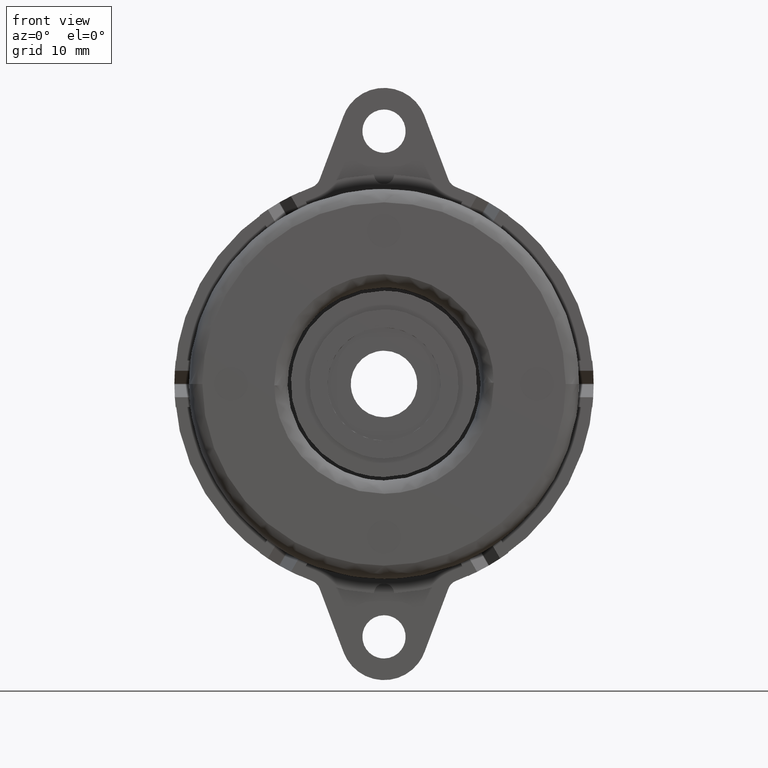
[diagram: clean part render]
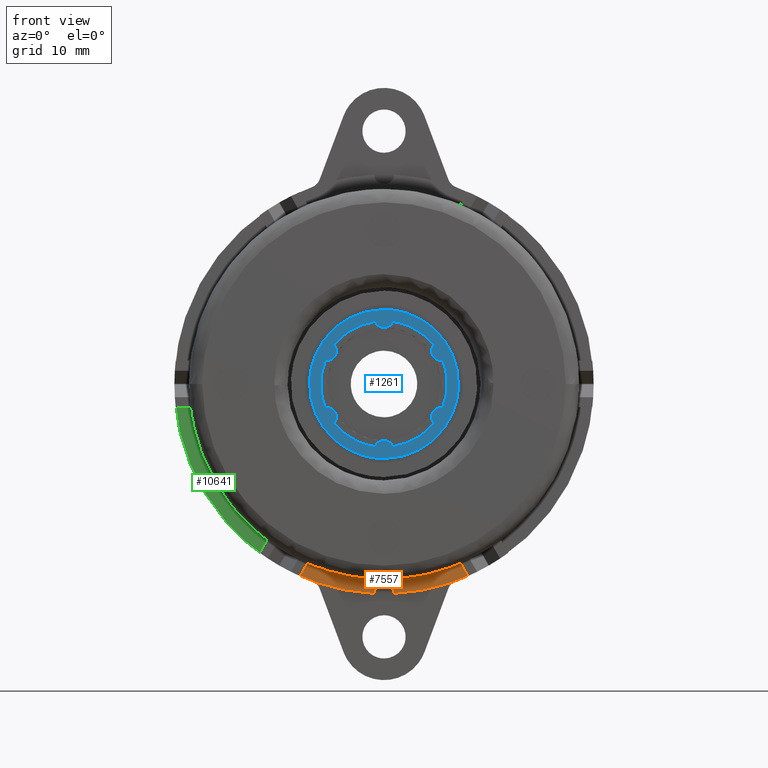
[diagram: same view with three faces highlighted in distinct colors, each labeled with its STEP entity id]
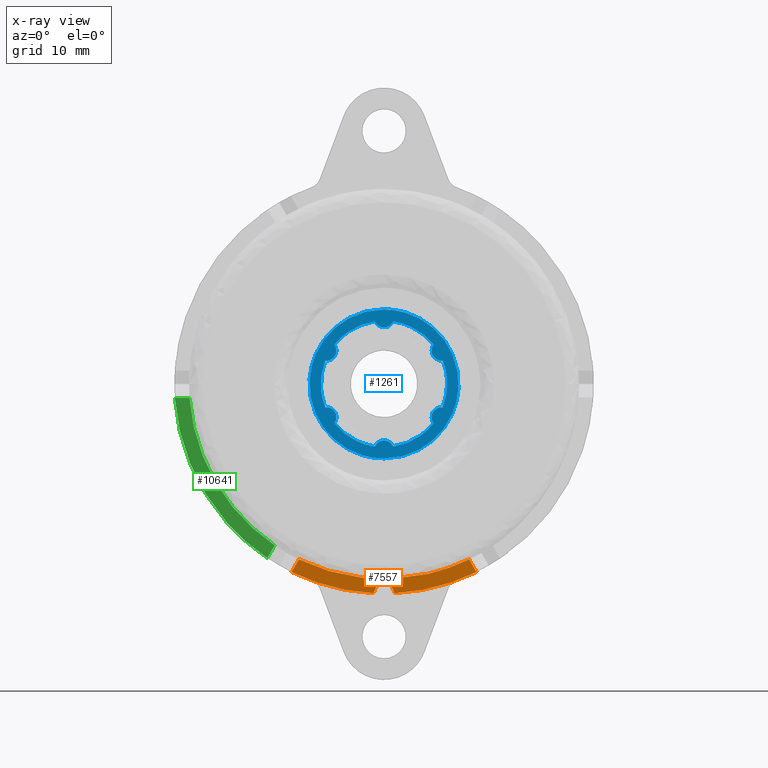
[diagram: x-ray of the same camera — body ghosted, the three highlighted faces saturated]
A machine part, front view with three faces highlighted in distinct colors.
The next image is the same camera in x-ray (body ghosted, the three faces saturated) — at least one of them is partly hidden behind the body in this view.
Their STEP definitions:

[orange] entity #7557 — the highlighted face is a freeform B-spline surface patch.
#4584=CARTESIAN_POINT('',(-1.499574769658360,-2.599999999999935,-31.464285714285690));
#4585=VERTEX_POINT('',#4584);
#4613=CARTESIAN_POINT('',(1.499574769658360,-2.599999999999935,-31.464285714285690));
#4614=VERTEX_POINT('',#4613);
#4620=CARTESIAN_POINT('',(1.499574769658360,-2.599999999999935,-31.464285714285690));
#4621=CARTESIAN_POINT('',(1.494721346220385,-2.599999999999939,-31.246750141905810));
#4622=CARTESIAN_POINT('',(1.402492444935919,-2.599999999999934,-30.874472178022518));
#4623=CARTESIAN_POINT('',(1.077306721654217,-2.599999999999927,-30.415005647611949));
#4624=CARTESIAN_POINT('',(0.696352003767002,-2.599999999999937,-30.145167614976621));
#4625=CARTESIAN_POINT('',(0.244731595022332,-2.599999999999939,-29.998429222119981));
#4626=CARTESIAN_POINT('',(-0.159669463013868,-2.599999999999914,-29.988644609372450));
#4627=CARTESIAN_POINT('',(-0.524461961482046,-2.599999999999961,-30.083372231143461));
#4628=CARTESIAN_POINT('',(-0.818348879486453,-2.599999999999931,-30.228686875891292));
#4629=CARTESIAN_POINT('',(-1.065113959247937,-2.599999999999926,-30.426934656549509));
#4630=CARTESIAN_POINT('',(-1.270356825196730,-2.599999999999962,-30.682611713872191));
#4631=CARTESIAN_POINT('',(-1.441385376834145,-2.599999999999891,-31.018459424166281));
#4632=CARTESIAN_POINT('',(-1.495666837734307,-2.599999999999972,-31.295124520902512));
#4633=CARTESIAN_POINT('',(-1.499574769658360,-2.599999999999935,-31.464285714285690));
#4634=B_SPLINE_CURVE_WITH_KNOTS('',3,(#4620,#4621,#4622,#4623,#4624,#4625,#4626,#4627,#4628,#4629,#4630,#4631,#4632,#4633),.UNSPECIFIED.,.F.,.U.,(4,1,1,1,1,1,1,1,1,1,1,4),(0.000000352736258,0.652617877729347,1.124009976354578,1.667919602518508,2.030513985304051,2.538073271837064,2.864403100312626,3.154470391885914,3.517063173000961,3.807148179050923,4.133490085881132,4.641066615799159),.UNSPECIFIED.);
#4635=EDGE_CURVE('',#4614,#4585,#4634,.T.);
#7492=CARTESIAN_POINT('',(-15.284548757091059,-2.599999999999915,-31.719280440947252));
#7493=CARTESIAN_POINT('',(-15.284548757091059,-2.599999999999915,-26.104291119845779));
#7494=CARTESIAN_POINT('',(15.284549504859051,-2.599999999999915,-31.719280440947252));
#7495=CARTESIAN_POINT('',(15.284549504859051,-2.599999999999915,-26.104291119845779));
#7496=B_SPLINE_SURFACE_WITH_KNOTS('',1,1,((#7492,#7494),(#7493,#7495)),.UNSPECIFIED.,.F.,.F.,.U.,(2,2),(2,2),(0.0,5.614989321101472),(0.0,30.569098261950099),.UNSPECIFIED.);
#7497=ORIENTED_EDGE('',*,*,#4635,.F.);
#7498=CARTESIAN_POINT('',(13.896307676503300,-2.599999999999935,-28.269110933313009));
#7499=VERTEX_POINT('',#7498);
#7500=CARTESIAN_POINT('',(1.499574769658361,-2.599999999999915,-31.464285714285719));
#7501=CARTESIAN_POINT('',(8.029495517440521,-2.599999999999914,-31.153072407549281));
#7502=CARTESIAN_POINT('',(13.896307676503289,-2.599999999999915,-28.269110933312980));
#7510=(BOUNDED_CURVE()B_SPLINE_CURVE(2,(#7500,#7501,#7502),.UNSPECIFIED.,.F.,.U.)CURVE()GEOMETRIC_REPRESENTATION_ITEM()QUASI_UNIFORM_CURVE()RATIONAL_B_SPLINE_CURVE((1.0,0.979136330898876,1.0))REPRESENTATION_ITEM(''));
#7511=EDGE_CURVE('',#4614,#7499,#7510,.T.);
#7512=ORIENTED_EDGE('',*,*,#7511,.T.);
#7513=CARTESIAN_POINT('',(12.793669727585661,-2.599999999999935,-26.359285983434098));
#7514=VERTEX_POINT('',#7513);
#7515=CARTESIAN_POINT('',(13.896307676503300,-2.599999999999935,-28.269110933313009));
#7516=CARTESIAN_POINT('',(12.793669727585661,-2.599999999999935,-26.359285983434098));
#7517=QUASI_UNIFORM_CURVE('',1,(#7515,#7516),.UNSPECIFIED.,.F.,.U.);
#7518=EDGE_CURVE('',#7499,#7514,#7517,.T.);
#7519=ORIENTED_EDGE('',*,*,#7518,.T.);
#7520=CARTESIAN_POINT('',(-12.793669727585661,-2.599999999999935,-26.359285983434098));
#7521=VERTEX_POINT('',#7520);
#7522=CARTESIAN_POINT('',(-12.793669727585661,-2.599999999999935,-26.359285983434098));
#7523=CARTESIAN_POINT('',(-1.568190E-015,-2.599999999999935,-32.568784025424073));
#7524=CARTESIAN_POINT('',(12.793669727585661,-2.599999999999935,-26.359285983434098));
#7532=(BOUNDED_CURVE()B_SPLINE_CURVE(2,(#7522,#7523,#7524),.UNSPECIFIED.,.F.,.U.)CURVE()GEOMETRIC_REPRESENTATION_ITEM()QUASI_UNIFORM_CURVE()RATIONAL_B_SPLINE_CURVE((1.0,0.899634363952268,1.0))REPRESENTATION_ITEM(''));
#7533=EDGE_CURVE('',#7521,#7514,#7532,.T.);
#7534=ORIENTED_EDGE('',*,*,#7533,.F.);
#7535=CARTESIAN_POINT('',(-13.896307674191339,-2.599999999999935,-28.269110929308550));
#7536=VERTEX_POINT('',#7535);
#7537=CARTESIAN_POINT('',(-13.896307674191339,-2.599999999999935,-28.269110929308550));
#7538=CARTESIAN_POINT('',(-12.793669727585661,-2.599999999999935,-26.359285983434098));
#7539=QUASI_UNIFORM_CURVE('',1,(#7537,#7538),.UNSPECIFIED.,.F.,.U.);
#7540=EDGE_CURVE('',#7536,#7521,#7539,.T.);
#7541=ORIENTED_EDGE('',*,*,#7540,.F.);
#7542=CARTESIAN_POINT('',(-13.896307674191339,-2.599999999999935,-28.269110929308550));
#7543=CARTESIAN_POINT('',(-8.029495517279946,-2.599999999999915,-31.153072407556934));
#7544=CARTESIAN_POINT('',(-1.499574769658363,-2.599999999999915,-31.464285714285719));
#7552=(BOUNDED_CURVE()B_SPLINE_CURVE(2,(#7542,#7543,#7544),.UNSPECIFIED.,.F.,.U.)CURVE()GEOMETRIC_REPRESENTATION_ITEM()QUASI_UNIFORM_CURVE()RATIONAL_B_SPLINE_CURVE((1.0,0.979136330899871,1.0))REPRESENTATION_ITEM(''));
#7553=EDGE_CURVE('',#7536,#4585,#7552,.T.);
#7554=ORIENTED_EDGE('',*,*,#7553,.T.);
#7555=EDGE_LOOP('',(#7497,#7512,#7519,#7534,#7541,#7554));
#7556=FACE_OUTER_BOUND('',#7555,.T.);
#7557=ADVANCED_FACE('',(#7556),#7496,.F.);

[blue] entity #1261 — the highlighted face is a freeform B-spline surface patch.
#681=CARTESIAN_POINT('',(-8.828024976885210,-12.900000000000119,3.509412345035965));
#682=VERTEX_POINT('',#681);
#683=CARTESIAN_POINT('',(-8.828024976885221,-12.900000000000119,-3.509412345035960));
#684=VERTEX_POINT('',#683);
#685=CARTESIAN_POINT('',(-8.828024976885210,-12.900000000000119,3.509412345035971));
#686=CARTESIAN_POINT('',(-10.223124678091114,-12.900000000000119,9.974660E-015));
#687=CARTESIAN_POINT('',(-8.828024976885217,-12.900000000000119,-3.509412345035954));
#695=(BOUNDED_CURVE()B_SPLINE_CURVE(2,(#685,#686,#687),.UNSPECIFIED.,.F.,.U.)CURVE()GEOMETRIC_REPRESENTATION_ITEM()QUASI_UNIFORM_CURVE()RATIONAL_B_SPLINE_CURVE((1.0,0.929265787040549,1.0))REPRESENTATION_ITEM(''));
#696=EDGE_CURVE('',#682,#684,#695,.T.);
#731=CARTESIAN_POINT('',(-7.453246806070279,-12.900000000000119,-5.890595220162660));
#732=VERTEX_POINT('',#731);
#733=CARTESIAN_POINT('',(-7.453246806070279,-12.900000000000119,-5.890595220162660));
#734=CARTESIAN_POINT('',(-7.334751208673375,-12.900000000000130,-5.730366475995407));
#735=CARTESIAN_POINT('',(-7.190640866334944,-12.900000000000110,-5.420488428964204));
#736=CARTESIAN_POINT('',(-7.141623558041214,-12.900000000000130,-4.938472209902607));
#737=CARTESIAN_POINT('',(-7.208646745203053,-12.900000000000160,-4.569245252803812));
#738=CARTESIAN_POINT('',(-7.358956253459696,-12.899999999999990,-4.228012392884105));
#739=CARTESIAN_POINT('',(-7.544885856963869,-12.900000000000380,-3.979015097438948));
#740=CARTESIAN_POINT('',(-7.806286185663397,-12.899999999999730,-3.753390619652464));
#741=CARTESIAN_POINT('',(-8.062139678032004,-12.900000000000331,-3.612342271785192));
#742=CARTESIAN_POINT('',(-8.418589769816823,-12.900000000000000,-3.503866097028800));
#743=CARTESIAN_POINT('',(-8.666023832327332,-12.900000000000160,-3.491077630030105));
#744=CARTESIAN_POINT('',(-8.828024976885221,-12.900000000000119,-3.509412345035960));
#745=B_SPLINE_CURVE_WITH_KNOTS('',3,(#733,#734,#735,#736,#737,#738,#739,#740,#741,#742,#743,#744),.UNSPECIFIED.,.F.,.U.,(4,1,1,1,1,1,1,1,1,4),(0.000000350794454,0.597747664832009,1.005339326435796,1.440103943858007,1.711826834172842,2.119335598428603,2.363879912299653,2.744286788135484,2.988841338147535,3.477898871698307),.UNSPECIFIED.);
#746=EDGE_CURVE('',#732,#684,#745,.T.);
#772=CARTESIAN_POINT('',(-1.374772708486750,-12.900000000000119,-9.400000000000000));
#773=VERTEX_POINT('',#772);
#774=CARTESIAN_POINT('',(-7.453246806070276,-12.900000000000119,-5.890595220162664));
#775=CARTESIAN_POINT('',(-5.111557032091210,-12.900000000000118,-8.853486265362497));
#776=CARTESIAN_POINT('',(-1.374772708486749,-12.900000000000119,-9.400000000000000));
#784=(BOUNDED_CURVE()B_SPLINE_CURVE(2,(#774,#775,#776),.UNSPECIFIED.,.F.,.U.)CURVE()GEOMETRIC_REPRESENTATION_ITEM()QUASI_UNIFORM_CURVE()RATIONAL_B_SPLINE_CURVE((1.0,0.929265981943490,1.0))REPRESENTATION_ITEM(''));
#785=EDGE_CURVE('',#732,#773,#784,.T.);
#816=CARTESIAN_POINT('',(1.374772708486750,-12.900000000000119,-9.400000000000000));
#817=VERTEX_POINT('',#816);
#818=CARTESIAN_POINT('',(1.374772708486750,-12.900000000000119,-9.400000000000000));
#819=CARTESIAN_POINT('',(1.288076984935448,-12.900000000000080,-9.200603487173074));
#820=CARTESIAN_POINT('',(1.085907918606523,-12.900000000000130,-8.923554872780125));
#821=CARTESIAN_POINT('',(0.673799759851501,-12.900000000000130,-8.637484103814790));
#822=CARTESIAN_POINT('',(0.282579048681908,-12.900000000000130,-8.505197763449694));
#823=CARTESIAN_POINT('',(-0.091506877263404,-12.900000000000110,-8.491731865045500));
#824=CARTESIAN_POINT('',(-0.458595312169556,-12.900000000000119,-8.555454815832139));
#825=CARTESIAN_POINT('',(-0.802686221284904,-12.900000000000100,-8.707727244833944));
#826=CARTESIAN_POINT('',(-1.149909530039016,-12.900000000000150,-9.004113933653397));
#827=CARTESIAN_POINT('',(-1.309652217351337,-12.900000000000110,-9.250544187489810));
#828=CARTESIAN_POINT('',(-1.374772708486750,-12.900000000000119,-9.400000000000000));
#829=B_SPLINE_CURVE_WITH_KNOTS('',3,(#818,#819,#820,#821,#822,#823,#824,#825,#826,#827,#828),.UNSPECIFIED.,.F.,.U.,(4,1,1,1,1,1,1,1,4),(0.000000351120822,0.652089514902897,1.005335601238262,1.494436285215171,1.874786881019338,2.119327744915226,2.608414562711185,2.988830260906426,3.477885982530661),.UNSPECIFIED.);
#830=EDGE_CURVE('',#817,#773,#829,.T.);
#856=CARTESIAN_POINT('',(7.453241799453159,-12.900000000000119,-5.890592692467580));
#857=VERTEX_POINT('',#856);
#858=CARTESIAN_POINT('',(1.374772708486750,-12.900000000000119,-9.400000000000000));
#859=CARTESIAN_POINT('',(5.111554234003248,-12.900000000000119,-8.853484655608087));
#860=CARTESIAN_POINT('',(7.453241799453159,-12.900000000000119,-5.890592692467580));
#868=(BOUNDED_CURVE()B_SPLINE_CURVE(2,(#858,#859,#860),.UNSPECIFIED.,.F.,.U.)CURVE()GEOMETRIC_REPRESENTATION_ITEM()QUASI_UNIFORM_CURVE()RATIONAL_B_SPLINE_CURVE((1.0,0.929266003744745,1.0))REPRESENTATION_ITEM(''));
#869=EDGE_CURVE('',#817,#857,#868,.T.);
#903=CARTESIAN_POINT('',(8.828025444571550,-12.900000000000119,-3.509411168557675));
#904=VERTEX_POINT('',#903);
#905=CARTESIAN_POINT('',(8.828025444571550,-12.900000000000119,-3.509411168557675));
#906=CARTESIAN_POINT('',(8.666027093006649,-12.900000000000141,-3.491075190703748));
#907=CARTESIAN_POINT('',(8.381906837348257,-12.900000000000110,-3.505733047910698));
#908=CARTESIAN_POINT('',(7.985234265557901,-12.900000000000110,-3.642335144090271));
#909=CARTESIAN_POINT('',(7.703327342563627,-12.900000000000160,-3.829196565342920));
#910=CARTESIAN_POINT('',(7.463421648101511,-12.900000000000080,-4.077562864756065));
#911=CARTESIAN_POINT('',(7.264564358312805,-12.900000000000050,-4.394707072942082));
#912=CARTESIAN_POINT('',(7.164194202683124,-12.900000000000331,-4.757338687319205));
#913=CARTESIAN_POINT('',(7.155259208015818,-12.900000000000000,-5.111650983367795));
#914=CARTESIAN_POINT('',(7.216457214717354,-12.900000000000240,-5.480142330526257));
#915=CARTESIAN_POINT('',(7.345560987041942,-12.900000000000061,-5.744913909485828));
#916=CARTESIAN_POINT('',(7.453241799453159,-12.900000000000119,-5.890592692467580));
#917=B_SPLINE_CURVE_WITH_KNOTS('',3,(#905,#906,#907,#908,#909,#910,#911,#912,#913,#914,#915,#916),.UNSPECIFIED.,.F.,.U.,(4,1,1,1,1,1,1,1,1,4),(0.000000350991060,0.489069612870953,0.842305136790492,1.249897494186427,1.494445594808009,1.874798560690734,2.363885877465920,2.608430811815381,2.934506413609158,3.477907648051641),.UNSPECIFIED.);
#918=EDGE_CURVE('',#904,#857,#917,.T.);
#942=CARTESIAN_POINT('',(8.828025641149331,-12.900000000000119,3.509413545404325));
#943=VERTEX_POINT('',#942);
#944=CARTESIAN_POINT('',(8.828025444571550,-12.900000000000119,-3.509411168557675));
#945=CARTESIAN_POINT('',(10.223125086237960,-12.900000000000116,0.000001345269523));
#946=CARTESIAN_POINT('',(8.828025641149331,-12.900000000000119,3.509413545404325));
#954=(BOUNDED_CURVE()B_SPLINE_CURVE(2,(#944,#945,#946),.UNSPECIFIED.,.F.,.U.)CURVE()GEOMETRIC_REPRESENTATION_ITEM()QUASI_UNIFORM_CURVE()RATIONAL_B_SPLINE_CURVE((1.0,0.929265794739009,1.0))REPRESENTATION_ITEM(''));
#955=EDGE_CURVE('',#904,#943,#954,.T.);
#989=CARTESIAN_POINT('',(7.453247217311509,-12.900000000000119,5.890594699827710));
#990=VERTEX_POINT('',#989);
#991=CARTESIAN_POINT('',(7.453247217311509,-12.900000000000119,5.890594699827710));
#992=CARTESIAN_POINT('',(7.356382975185635,-12.900000000000141,5.759465173701560));
#993=CARTESIAN_POINT('',(7.201873446814544,-12.900000000000070,5.457049763509615));
#994=CARTESIAN_POINT('',(7.141331168614491,-12.900000000000171,5.020045786710369));
#995=CARTESIAN_POINT('',(7.196234911011541,-12.900000000000100,4.614100019014342));
#996=CARTESIAN_POINT('',(7.344734135028395,-12.900000000000031,4.230501899585152));
#997=CARTESIAN_POINT('',(7.609792362742510,-12.900000000000171,3.901110571049135));
#998=CARTESIAN_POINT('',(7.922959221904228,-12.900000000000150,3.681227069147864));
#999=CARTESIAN_POINT('',(8.307906828084416,-12.900000000000080,3.516500488261396));
#1000=CARTESIAN_POINT('',(8.621000423979483,-12.900000000000119,3.485824870756509));
#1001=CARTESIAN_POINT('',(8.828025641149331,-12.900000000000119,3.509413545404325));
#1002=B_SPLINE_CURVE_WITH_KNOTS('',3,(#991,#992,#993,#994,#995,#996,#997,#998,#999,#1000,#1001),.UNSPECIFIED.,.F.,.U.,(4,1,1,1,1,1,1,1,4),(0.000000351326058,0.489069767383297,1.005342180009403,1.304238061687598,1.711831691163612,2.228013442684670,2.554087602511753,2.852976641431055,3.477908739433380),.UNSPECIFIED.);
#1003=EDGE_CURVE('',#990,#943,#1002,.T.);
#1027=CARTESIAN_POINT('',(1.374772708486752,-12.900000000000119,9.400000000000000));
#1028=VERTEX_POINT('',#1027);
#1029=CARTESIAN_POINT('',(7.453247217311510,-12.900000000000119,5.890594699827703));
#1030=CARTESIAN_POINT('',(5.111557412066436,-12.900000000000123,8.853486209790200));
#1031=CARTESIAN_POINT('',(1.374772708486754,-12.900000000000119,9.399999999999999));
#1039=(BOUNDED_CURVE()B_SPLINE_CURVE(2,(#1029,#1030,#1031),.UNSPECIFIED.,.F.,.U.)CURVE()GEOMETRIC_REPRESENTATION_ITEM()QUASI_UNIFORM_CURVE()RATIONAL_B_SPLINE_CURVE((1.0,0.929265969048597,1.0))REPRESENTATION_ITEM(''));
#1040=EDGE_CURVE('',#990,#1028,#1039,.T.);
#1071=CARTESIAN_POINT('',(-1.374772708486750,-12.900000000000119,9.400000000000000));
#1072=VERTEX_POINT('',#1071);
#1073=CARTESIAN_POINT('',(-1.374772708486750,-12.900000000000119,9.400000000000000));
#1074=CARTESIAN_POINT('',(-1.309641045385240,-12.900000000000110,9.250549325104560));
#1075=CARTESIAN_POINT('',(-1.125006260695131,-12.900000000000141,8.965537789335265));
#1076=CARTESIAN_POINT('',(-0.740526645190710,-12.900000000000119,8.666366273281639));
#1077=CARTESIAN_POINT('',(-0.361376056441422,-12.900000000000150,8.530578319997293));
#1078=CARTESIAN_POINT('',(0.008632008454321,-12.899999999999959,8.486827432472811));
#1079=CARTESIAN_POINT('',(0.317927955489955,-12.900000000000450,8.520565897939544));
#1080=CARTESIAN_POINT('',(0.652616391613399,-12.899999999999670,8.637140446712502));
#1081=CARTESIAN_POINT('',(0.902687142524370,-12.900000000000309,8.788197248607068));
#1082=CARTESIAN_POINT('',(1.174862092771816,-12.899999999999951,9.042642729257414));
#1083=CARTESIAN_POINT('',(1.309648655640740,-12.900000000000230,9.250538208187029));
#1084=CARTESIAN_POINT('',(1.374772708486752,-12.900000000000119,9.400000000000000));
#1085=B_SPLINE_CURVE_WITH_KNOTS('',3,(#1073,#1074,#1075,#1076,#1077,#1078,#1079,#1080,#1081,#1082,#1083,#1084),.UNSPECIFIED.,.F.,.U.,(4,1,1,1,1,1,1,1,1,4),(0.000000351120478,0.489066566988437,1.005335601237908,1.440098607287733,1.684631356363751,2.119327744915171,2.363871151910026,2.744276617491747,2.988830260906422,3.477885982530663),.UNSPECIFIED.);
#1086=EDGE_CURVE('',#1072,#1028,#1085,.T.);
#1112=CARTESIAN_POINT('',(-7.453246806070260,-12.900000000000119,5.890595220162680));
#1113=VERTEX_POINT('',#1112);
#1114=CARTESIAN_POINT('',(-1.374772708486752,-12.900000000000119,9.399999999999999));
#1115=CARTESIAN_POINT('',(-5.111557032091200,-12.900000000000121,8.853486265362497));
#1116=CARTESIAN_POINT('',(-7.453246806070264,-12.900000000000119,5.890595220162679));
#1124=(BOUNDED_CURVE()B_SPLINE_CURVE(2,(#1114,#1115,#1116),.UNSPECIFIED.,.F.,.U.)CURVE()GEOMETRIC_REPRESENTATION_ITEM()QUASI_UNIFORM_CURVE()RATIONAL_B_SPLINE_CURVE((1.0,0.929265981943490,1.0))REPRESENTATION_ITEM(''));
#1125=EDGE_CURVE('',#1072,#1113,#1124,.T.);
#1156=CARTESIAN_POINT('',(-8.828024976885210,-12.900000000000119,3.509412345035965));
#1157=CARTESIAN_POINT('',(-8.611995425487953,-12.900000000000100,3.484795405009875));
#1158=CARTESIAN_POINT('',(-8.270973057477816,-12.900000000000160,3.521349547398530));
#1159=CARTESIAN_POINT('',(-7.817187389542911,-12.900000000000061,3.735223174410560));
#1160=CARTESIAN_POINT('',(-7.465579420286892,-12.900000000000240,4.044190452603229));
#1161=CARTESIAN_POINT('',(-7.242706862035147,-12.899999999999951,4.446940889511012));
#1162=CARTESIAN_POINT('',(-7.153137785681131,-12.900000000000389,4.856365090262030));
#1163=CARTESIAN_POINT('',(-7.159446276111981,-12.899999999999981,5.175855501909057));
#1164=CARTESIAN_POINT('',(-7.243724824952158,-12.900000000000210,5.538786331846010));
#1165=CARTESIAN_POINT('',(-7.356368193000530,-12.900000000000100,5.759465700943507));
#1166=CARTESIAN_POINT('',(-7.453246806070260,-12.900000000000119,5.890595220162680));
#1167=B_SPLINE_CURVE_WITH_KNOTS('',3,(#1156,#1157,#1158,#1159,#1160,#1161,#1162,#1163,#1164,#1165,#1166),.UNSPECIFIED.,.F.,.U.,(4,1,1,1,1,1,1,1,4),(0.000000350446349,0.652091930594695,1.005339326418818,1.494441823998559,2.037796233159266,2.363879913053080,2.744286788239409,2.988841338301278,3.477898871698318),.UNSPECIFIED.);
#1168=EDGE_CURVE('',#682,#1113,#1167,.T.);
#1176=CARTESIAN_POINT('',(-12.318604337862880,-12.900000000000119,12.318879956584460));
#1177=CARTESIAN_POINT('',(12.318603937319670,-12.900000000000119,12.318879956584460));
#1178=CARTESIAN_POINT('',(-12.318604337862880,-12.900000000000119,-12.318880557399270));
#1179=CARTESIAN_POINT('',(12.318603937319670,-12.900000000000119,-12.318880557399270));
#1180=B_SPLINE_SURFACE_WITH_KNOTS('',1,1,((#1176,#1178),(#1177,#1179)),.UNSPECIFIED.,.F.,.F.,.U.,(2,2),(2,2),(0.0,24.637208275182552),(0.0,24.637760513983729),.UNSPECIFIED.);
#1181=CARTESIAN_POINT('',(0.0,-12.900000000000119,11.199999999999999));
#1182=VERTEX_POINT('',#1181);
#1183=CARTESIAN_POINT('',(-11.179109742319261,-12.900000000000119,0.683743642882775));
#1184=VERTEX_POINT('',#1183);
#1185=CARTESIAN_POINT('',(0.0,-12.900000000000119,11.199999999999999));
#1186=CARTESIAN_POINT('',(-10.535907949256558,-12.900000000000119,11.200000000000001));
#1187=CARTESIAN_POINT('',(-11.179109742319259,-12.900000000000119,0.683743642882774));
#1195=(BOUNDED_CURVE()B_SPLINE_CURVE(2,(#1185,#1186,#1187),.UNSPECIFIED.,.F.,.U.)B_SPLINE_CURVE_WITH_KNOTS((3,3),(0.0,0.239332962240543),.UNSPECIFIED.)CURVE()GEOMETRIC_REPRESENTATION_ITEM()RATIONAL_B_SPLINE_CURVE((1.0,0.719603993284836,0.976072041670146))REPRESENTATION_ITEM(''));
#1196=EDGE_CURVE('',#1182,#1184,#1195,.T.);
#1197=ORIENTED_EDGE('',*,*,#1196,.T.);
#1198=CARTESIAN_POINT('',(0.0,-12.900000000000119,-11.199999999999999));
#1199=VERTEX_POINT('',#1198);
#1200=CARTESIAN_POINT('',(-11.179109742319259,-12.900000000000119,0.683743642882774));
#1201=CARTESIAN_POINT('',(-11.200000000000003,-12.900000000000125,0.342190948990513));
#1202=CARTESIAN_POINT('',(-11.199999999999999,-12.900000000000119,0.0));
#1203=CARTESIAN_POINT('',(-11.199999999999999,-12.900000000000119,-11.199999999999999));
#1204=CARTESIAN_POINT('',(0.0,-12.900000000000119,-11.199999999999999));
#1212=(BOUNDED_CURVE()B_SPLINE_CURVE(2,(#1200,#1201,#1202,#1203,#1204),.UNSPECIFIED.,.F.,.U.)B_SPLINE_CURVE_WITH_KNOTS((3,2,3),(0.239332962240543,0.250000000000000,0.500000000000000),.UNSPECIFIED.)CURVE()GEOMETRIC_REPRESENTATION_ITEM()RATIONAL_B_SPLINE_CURVE((0.976072041670146,0.987502787901711,1.0,0.707106781186547,1.0))REPRESENTATION_ITEM(''));
#1213=EDGE_CURVE('',#1184,#1199,#1212,.T.);
#1214=ORIENTED_EDGE('',*,*,#1213,.T.);
#1215=CARTESIAN_POINT('',(11.179109742319261,-12.900000000000119,-0.683743642882773));
#1216=VERTEX_POINT('',#1215);
#1217=CARTESIAN_POINT('',(0.0,-12.900000000000119,-11.199999999999999));
#1218=CARTESIAN_POINT('',(10.535907949256556,-12.900000000000119,-11.200000000000001));
#1219=CARTESIAN_POINT('',(11.179109742319262,-12.900000000000121,-0.683743642882776));
#1227=(BOUNDED_CURVE()B_SPLINE_CURVE(2,(#1217,#1218,#1219),.UNSPECIFIED.,.F.,.U.)B_SPLINE_CURVE_WITH_KNOTS((3,3),(0.500000000000000,0.739332962240542),.UNSPECIFIED.)CURVE()GEOMETRIC_REPRESENTATION_ITEM()RATIONAL_B_SPLINE_CURVE((1.0,0.719603993284836,0.976072041670146))REPRESENTATION_ITEM(''));
#1228=EDGE_CURVE('',#1199,#1216,#1227,.T.);
#1229=ORIENTED_EDGE('',*,*,#1228,.T.);
#1230=CARTESIAN_POINT('',(11.179109742319262,-12.900000000000121,-0.683743642882776));
#1231=CARTESIAN_POINT('',(11.200000000000003,-12.900000000000125,-0.342190948990514));
#1232=CARTESIAN_POINT('',(11.199999999999999,-12.900000000000119,0.0));
#1233=CARTESIAN_POINT('',(11.199999999999999,-12.900000000000119,11.199999999999999));
#1234=CARTESIAN_POINT('',(0.0,-12.900000000000119,11.199999999999999));
#1242=(BOUNDED_CURVE()B_SPLINE_CURVE(2,(#1230,#1231,#1232,#1233,#1234),.UNSPECIFIED.,.F.,.U.)B_SPLINE_CURVE_WITH_KNOTS((3,2,3),(0.739332962240542,0.750000000000000,1.0),.UNSPECIFIED.)CURVE()GEOMETRIC_REPRESENTATION_ITEM()RATIONAL_B_SPLINE_CURVE((0.976072041670146,0.987502787901711,1.0,0.707106781186547,1.0))REPRESENTATION_ITEM(''));
#1243=EDGE_CURVE('',#1216,#1182,#1242,.T.);
#1244=ORIENTED_EDGE('',*,*,#1243,.T.);
#1245=EDGE_LOOP('',(#1197,#1214,#1229,#1244));
#1246=FACE_OUTER_BOUND('',#1245,.T.);
#1247=ORIENTED_EDGE('',*,*,#918,.T.);
#1248=ORIENTED_EDGE('',*,*,#869,.F.);
#1249=ORIENTED_EDGE('',*,*,#830,.T.);
#1250=ORIENTED_EDGE('',*,*,#785,.F.);
#1251=ORIENTED_EDGE('',*,*,#746,.T.);
#1252=ORIENTED_EDGE('',*,*,#696,.F.);
#1253=ORIENTED_EDGE('',*,*,#1168,.T.);
#1254=ORIENTED_EDGE('',*,*,#1125,.F.);
#1255=ORIENTED_EDGE('',*,*,#1086,.T.);
#1256=ORIENTED_EDGE('',*,*,#1040,.F.);
#1257=ORIENTED_EDGE('',*,*,#1003,.T.);
#1258=ORIENTED_EDGE('',*,*,#955,.F.);
#1259=EDGE_LOOP('',(#1247,#1248,#1249,#1250,#1251,#1252,#1253,#1254,#1255,#1256,#1257,#1258));
#1260=FACE_BOUND('',#1259,.T.);
#1261=ADVANCED_FACE('',(#1246,#1260),#1180,.F.);

[green] entity #10641 — the highlighted face is a freeform B-spline surface patch.
#6344=CARTESIAN_POINT('',(-31.429922044277198,-2.599999999999935,-2.099999999999920));
#6345=VERTEX_POINT('',#6344);
#6368=CARTESIAN_POINT('',(-17.533614372397849,-2.599999999999935,-26.169110933313050));
#6369=VERTEX_POINT('',#6368);
#6375=CARTESIAN_POINT('',(-31.429922044277198,-2.599999999999935,-2.099999999999920));
#6376=CARTESIAN_POINT('',(-30.397620531036218,-2.599999999999916,-17.550074396516141));
#6377=CARTESIAN_POINT('',(-17.533614372397839,-2.599999999999915,-26.169110933313039));
#6385=(BOUNDED_CURVE()B_SPLINE_CURVE(2,(#6375,#6376,#6377),.UNSPECIFIED.,.F.,.U.)CURVE()GEOMETRIC_REPRESENTATION_ITEM()QUASI_UNIFORM_CURVE()RATIONAL_B_SPLINE_CURVE((1.0,0.897432093123206,1.0))REPRESENTATION_ITEM(''));
#6386=EDGE_CURVE('',#6345,#6369,#6385,.T.);
#8655=CARTESIAN_POINT('',(-29.224646151065851,-2.599999999999935,-2.099999999999920));
#8656=VERTEX_POINT('',#8655);
#8657=CARTESIAN_POINT('',(-31.429922044277198,-2.599999999999935,-2.099999999999920));
#8658=CARTESIAN_POINT('',(-29.224646151065851,-2.599999999999935,-2.099999999999920));
#8659=QUASI_UNIFORM_CURVE('',1,(#8657,#8658),.UNSPECIFIED.,.F.,.U.);
#8660=EDGE_CURVE('',#6345,#8656,#8659,.T.);
#8823=CARTESIAN_POINT('',(-16.430976423480150,-2.599999999999935,-24.259285983434150));
#8824=VERTEX_POINT('',#8823);
#8830=CARTESIAN_POINT('',(-17.533614372397849,-2.599999999999935,-26.169110933313050));
#8831=CARTESIAN_POINT('',(-16.430976423480150,-2.599999999999935,-24.259285983434150));
#8832=QUASI_UNIFORM_CURVE('',1,(#8830,#8831),.UNSPECIFIED.,.F.,.U.);
#8833=EDGE_CURVE('',#6369,#8824,#8832,.T.);
#10603=CARTESIAN_POINT('',(-32.179119348965152,-2.599999999999915,-27.371362977781430));
#10604=CARTESIAN_POINT('',(-32.179119348965152,-2.599999999999915,-0.897747309947673));
#10605=CARTESIAN_POINT('',(-15.681778716489131,-2.599999999999915,-27.371362977781430));
#10606=CARTESIAN_POINT('',(-15.681778716489131,-2.599999999999915,-0.897747309947673));
#10607=B_SPLINE_SURFACE_WITH_KNOTS('',1,1,((#10603,#10605),(#10604,#10606)),.UNSPECIFIED.,.F.,.F.,.U.,(2,2),(2,2),(0.0,26.473615667833759),(0.0,16.497340632476021),.UNSPECIFIED.);
#10608=ORIENTED_EDGE('',*,*,#8660,.F.);
#10609=ORIENTED_EDGE('',*,*,#6386,.T.);
#10610=ORIENTED_EDGE('',*,*,#8833,.T.);
#10611=CARTESIAN_POINT('',(-25.217119864870099,-2.600000000045554,-14.919333682688340));
#10612=VERTEX_POINT('',#10611);
#10613=CARTESIAN_POINT('',(-25.217119864870103,-2.600000000045554,-14.919333682688338));
#10614=CARTESIAN_POINT('',(-21.871330369041598,-2.600000000022745,-20.574494744263212));
#10615=CARTESIAN_POINT('',(-16.430976423480150,-2.599999999999935,-24.259285983434150));
#10623=(BOUNDED_CURVE()B_SPLINE_CURVE(2,(#10613,#10614,#10615),.UNSPECIFIED.,.F.,.U.)B_SPLINE_CURVE_WITH_KNOTS((3,3),(0.511580545501842,1.0),.UNSPECIFIED.)CURVE()GEOMETRIC_REPRESENTATION_ITEM()RATIONAL_B_SPLINE_CURVE((0.949844101853152,0.950979470791206,1.0))REPRESENTATION_ITEM(''));
#10624=EDGE_CURVE('',#10612,#8824,#10623,.T.);
#10625=ORIENTED_EDGE('',*,*,#10624,.F.);
#10626=CARTESIAN_POINT('',(-29.224646151065851,-2.599999999999935,-2.099999999999920));
#10627=CARTESIAN_POINT('',(-28.730159203145053,-2.600000000022744,-8.981489725115038));
#10628=CARTESIAN_POINT('',(-25.217119864870103,-2.600000000045554,-14.919333682688338));
#10636=(BOUNDED_CURVE()B_SPLINE_CURVE(2,(#10626,#10627,#10628),.UNSPECIFIED.,.F.,.U.)B_SPLINE_CURVE_WITH_KNOTS((3,3),(0.0,0.511580545501843),.UNSPECIFIED.)CURVE()GEOMETRIC_REPRESENTATION_ITEM()RATIONAL_B_SPLINE_CURVE((1.0,0.948654893161062,0.949844101853152))REPRESENTATION_ITEM(''));
#10637=EDGE_CURVE('',#8656,#10612,#10636,.T.);
#10638=ORIENTED_EDGE('',*,*,#10637,.F.);
#10639=EDGE_LOOP('',(#10608,#10609,#10610,#10625,#10638));
#10640=FACE_OUTER_BOUND('',#10639,.T.);
#10641=ADVANCED_FACE('',(#10640),#10607,.F.);